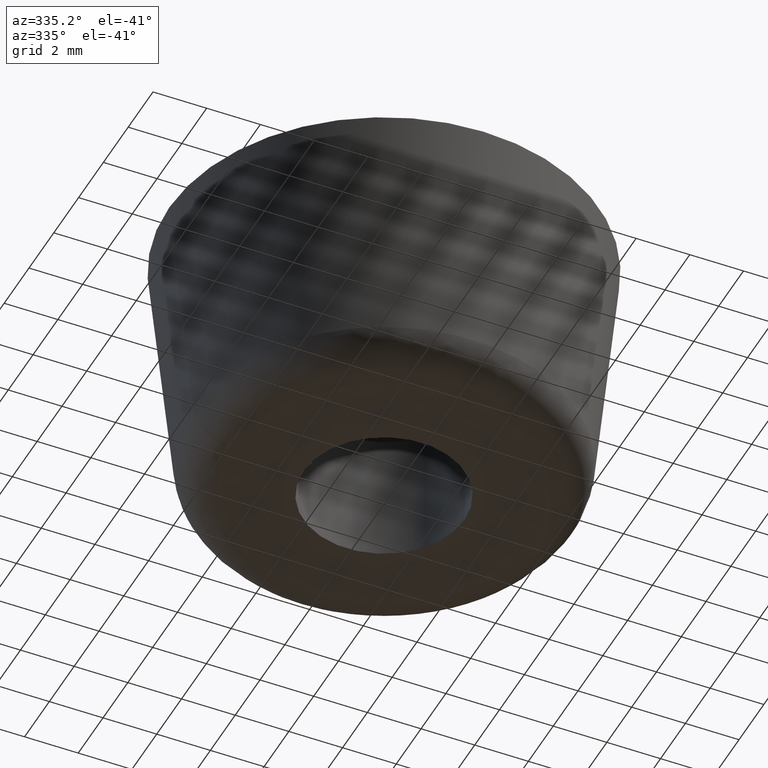
[diagram: clean part render]
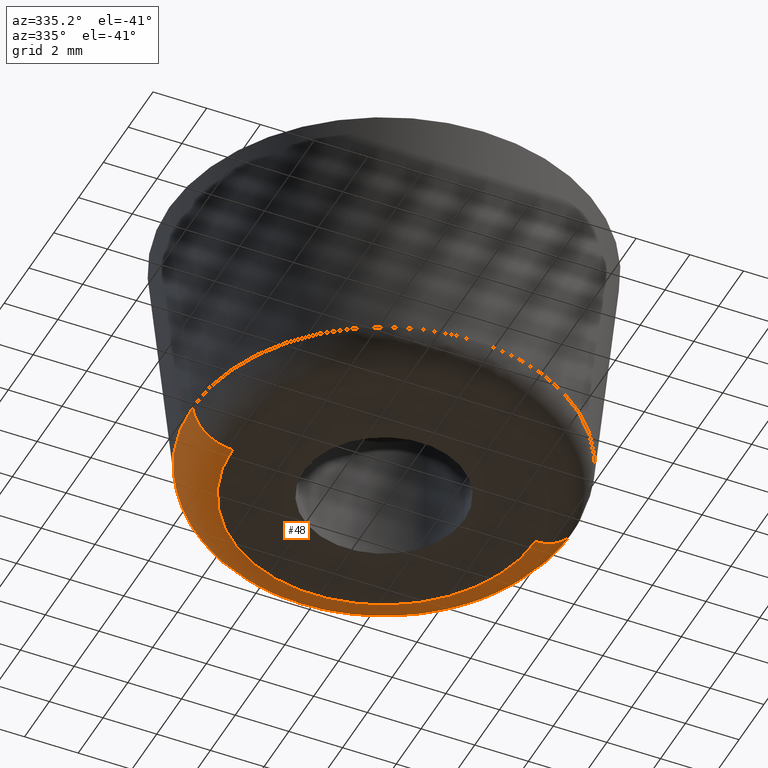
[diagram: same view with one face highlighted and labeled with its STEP entity id]
A machine part, auxiliary view. The second image highlights one B-rep face of the part: STEP entity #48.
In plain terms, the highlighted face is a freeform B-spline surface patch.
Its self-contained STEP definition (entity closure, byte-faithful):
#48=ADVANCED_FACE('',(#135),#134,.T.);
#134=( BOUNDED_SURFACE() B_SPLINE_SURFACE( 2,2,((#228,#229,#230,#231,#232),(#233,#234,#235,#236,#237),(#238,#239,#240,#241,#242),(#243,#244,#245,#246,#247),(#248,#249,#250,#251,#252)), .UNSPECIFIED.,.F.,.F.,.F.) B_SPLINE_SURFACE_WITH_KNOTS((3,2,3),(3,2,3),(0.00000000000E+00,5.00000000000E-01,1.00000000000E+00),(0.00000000000E+00,5.00000000000E-01,1.00000000000E+00), .UNSPECIFIED. ) GEOMETRIC_REPRESENTATION_ITEM() RATIONAL_B_SPLINE_SURFACE(((1.00000000000E+00,7.41452533552E-01,1.00000000000E+00,7.41452533552E-01,1.00000000000E+00),(7.07106781187E-01,5.24286114402E-01,7.07106781187E-01,5.24286114402E-01,7.07106781187E-01),(1.00000000000E+00,7.41452533552E-01,1.00000000000E+00,7.41452533552E-01,1.00000000000E+00),(7.07106781187E-01,5.24286114402E-01,7.07106781187E-01,5.24286114402E-01,7.07106781187E-01),(1.00000000000E+00,7.41452533552E-01,1.00000000000E+00,7.41452533552E-01,1.00000000000E+00))) REPRESENTATION_ITEM('') SURFACE() );
#135=FACE_OUTER_BOUND('',#253,.T.);
#228=CARTESIAN_POINT('',(-7.13507444215E+00,-2.88580404540E-20,-8.64925557853E+00));
#229=CARTESIAN_POINT('',(-7.00000000000E+00,-2.83117274832E-20,-1.00000000000E+01));
#230=CARTESIAN_POINT('',(-5.64251865683E+00,-2.28213500758E-20,-1.00000000000E+01));
#231=CARTESIAN_POINT('',(-4.28503731366E+00,-1.73309726685E-20,-1.00000000000E+01));
#232=CARTESIAN_POINT('',(-4.14996287152E+00,-1.67846596977E-20,-8.64925557853E+00));
#233=CARTESIAN_POINT('',(-7.13507444215E+00,7.13507444215E+00,-8.64925557853E+00));
#234=CARTESIAN_POINT('',(-7.00000000000E+00,7.00000000000E+00,-1.00000000000E+01));
#235=CARTESIAN_POINT('',(-5.64251865683E+00,5.64251865683E+00,-1.00000000000E+01));
#236=CARTESIAN_POINT('',(-4.28503731366E+00,4.28503731366E+00,-1.00000000000E+01));
#237=CARTESIAN_POINT('',(-4.14996287152E+00,4.14996287152E+00,-8.64925557853E+00));
#238=CARTESIAN_POINT('',(1.34408616459E-14,7.13507444215E+00,-8.64925557853E+00));
#239=CARTESIAN_POINT('',(1.34491331164E-14,7.00000000000E+00,-1.00000000000E+01));
#240=CARTESIAN_POINT('',(1.35322603659E-14,5.64251865683E+00,-1.00000000000E+01));
#241=CARTESIAN_POINT('',(1.36153876153E-14,4.28503731366E+00,-1.00000000000E+01));
#242=CARTESIAN_POINT('',(1.36236590858E-14,4.14996287152E+00,-8.64925557853E+00));
#243=CARTESIAN_POINT('',(7.13507444215E+00,7.13507444215E+00,-8.64925557853E+00));
#244=CARTESIAN_POINT('',(7.00000000000E+00,7.00000000000E+00,-1.00000000000E+01));
#245=CARTESIAN_POINT('',(5.64251865683E+00,5.64251865683E+00,-1.00000000000E+01));
#246=CARTESIAN_POINT('',(4.28503731366E+00,4.28503731366E+00,-1.00000000000E+01));
#247=CARTESIAN_POINT('',(4.14996287152E+00,4.14996287152E+00,-8.64925557853E+00));
#248=CARTESIAN_POINT('',(7.13507444215E+00,8.73823465766E-16,-8.64925557853E+00));
#249=CARTESIAN_POINT('',(7.00000000000E+00,8.57281071131E-16,-1.00000000000E+01));
#250=CARTESIAN_POINT('',(5.64251865683E+00,6.91032062572E-16,-1.00000000000E+01));
#251=CARTESIAN_POINT('',(4.28503731366E+00,5.24783054013E-16,-1.00000000000E+01));
#252=CARTESIAN_POINT('',(4.14996287152E+00,5.08240659378E-16,-8.64925557853E+00));
#253=EDGE_LOOP('',(#308,#309,#310,#311));
#308=ORIENTED_EDGE('',*,*,#339,.T.);
#309=ORIENTED_EDGE('',*,*,#336,.T.);
#310=ORIENTED_EDGE('',*,*,#324,.F.);
#311=ORIENTED_EDGE('',*,*,#338,.F.);
#324=EDGE_CURVE('',#370,#371,#372,.T.);
#336=EDGE_CURVE('',#450,#371,#451,.T.);
#338=EDGE_CURVE('',#457,#370,#464,.T.);
#339=EDGE_CURVE('',#457,#450,#470,.T.);
#370=VERTEX_POINT('',#508);
#371=VERTEX_POINT('',#509);
#372=CIRCLE('',#513,5.64251865683E+00);
#450=VERTEX_POINT('',#556);
#451=(BOUNDED_CURVE() B_SPLINE_CURVE(2,(#557,#558,#559),.UNSPECIFIED.,.F.,.F.) B_SPLINE_CURVE_WITH_KNOTS((3,3),(0.00000000000E+00,5.00000000000E-01),.UNSPECIFIED.) CURVE() GEOMETRIC_REPRESENTATION_ITEM() RATIONAL_B_SPLINE_CURVE((1.00000000000E+00,7.41452533552E-01,1.00000000000E+00)) REPRESENTATION_ITEM('') );
#457=VERTEX_POINT('',#560);
#464=(BOUNDED_CURVE() B_SPLINE_CURVE(3,(#565,#566,#567,#568,#569),.UNSPECIFIED.,.F.,.F.) B_SPLINE_CURVE_WITH_KNOTS((4,1,4),(0.00000000000E+00,2.50000003657E-01,5.00000006454E-01),.UNSPECIFIED.) CURVE() GEOMETRIC_REPRESENTATION_ITEM() RATIONAL_B_SPLINE_CURVE((1.00000000000E+00,1.00000000000E+00,1.00000000000E+00,1.00000000000E+00,1.00000000000E+00)) REPRESENTATION_ITEM('') );
#470=CIRCLE('',#573,7.13507444215E+00);
#508=CARTESIAN_POINT('',(-5.64251865683E+00,0.00000000000E+00,-1.00000000000E+01));
#509=CARTESIAN_POINT('',(5.64251865683E+00,2.96059473233E-16,-1.00000000000E+01));
#510=CARTESIAN_POINT('',(1.42108547152E-14,0.00000000000E+00,-1.00000000000E+01));
#511=DIRECTION('',(-0.00000000000E+00,0.00000000000E+00,-1.00000000000E+00));
#512=DIRECTION('',(-1.00000000000E+00,-1.22460635382E-16,0.00000000000E+00));
#513=AXIS2_PLACEMENT_3D('',#510,#511,#512);
#556=CARTESIAN_POINT('',(7.13507444215E+00,2.96059473233E-16,-8.64925557853E+00));
#557=CARTESIAN_POINT('',(7.13507444215E+00,-8.73765749685E-16,-8.64925557853E+00));
#558=CARTESIAN_POINT('',(7.00000000000E+00,-8.57224447676E-16,-1.00000000000E+01));
#559=CARTESIAN_POINT('',(5.64251865683E+00,-6.90986419872E-16,-1.00000000000E+01));
#560=CARTESIAN_POINT('',(-7.13507444215E+00,0.00000000000E+00,-8.64925557853E+00));
#565=CARTESIAN_POINT('',(-7.13507444215E+00,5.92118946467E-16,-8.64925557853E+00));
#566=CARTESIAN_POINT('',(-7.10131412581E+00,7.56180789292E-16,-9.01252578852E+00));
#567=CARTESIAN_POINT('',(-6.74372355499E+00,9.43891241730E-16,-9.71681773829E+00));
#568=CARTESIAN_POINT('',(-6.00734527561E+00,7.56180774006E-16,-1.00025539729E+01));
#569=CARTESIAN_POINT('',(-5.64251863085E+00,5.92118946597E-16,-1.00000000000E+01));
#570=CARTESIAN_POINT('',(1.42108547152E-14,0.00000000000E+00,-8.64925557853E+00));
#571=DIRECTION('',(-0.00000000000E+00,0.00000000000E+00,-1.00000000000E+00));
#572=DIRECTION('',(-1.00000000000E+00,-1.22460635382E-16,0.00000000000E+00));
#573=AXIS2_PLACEMENT_3D('',#570,#571,#572);